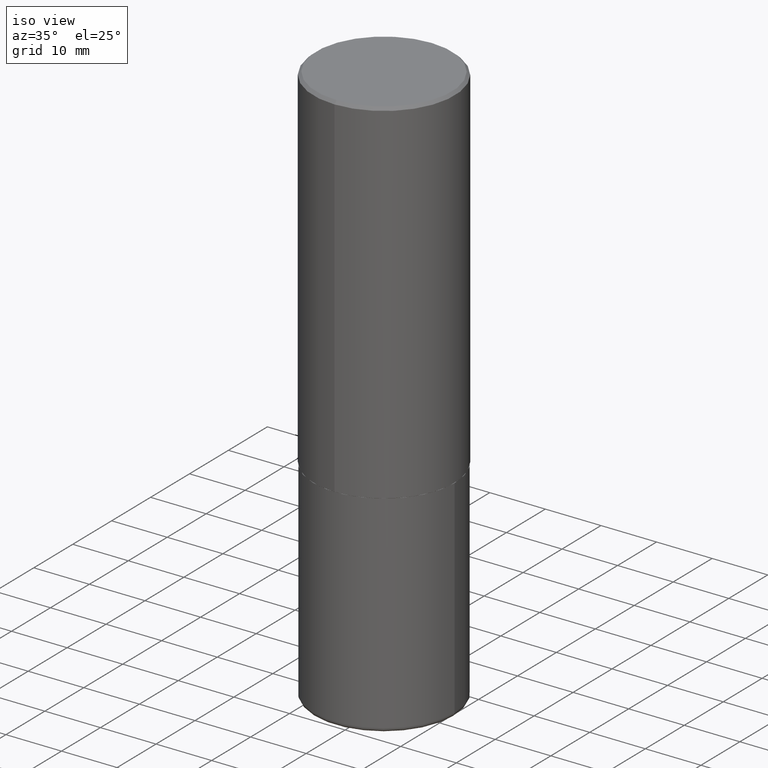
[diagram: clean part render]
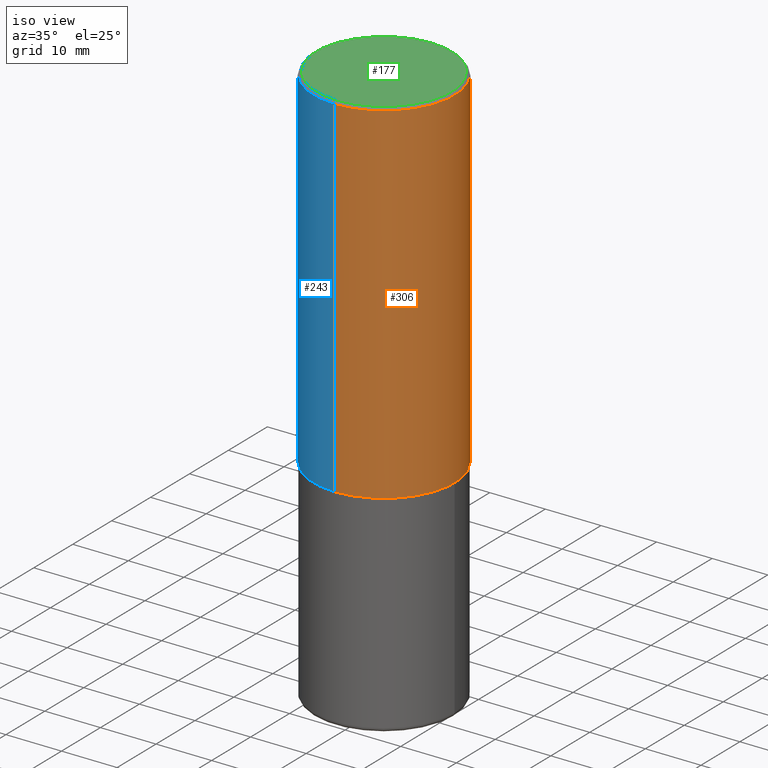
[diagram: same view with three faces highlighted in distinct colors, each labeled with its STEP entity id]
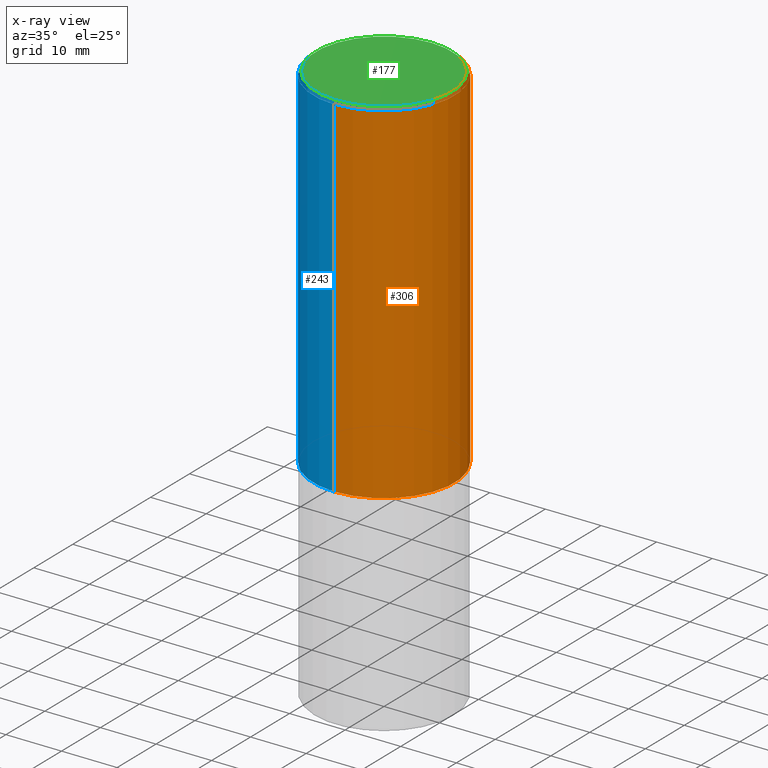
[diagram: x-ray of the same camera — body ghosted, the three highlighted faces saturated]
A machine part, iso view with three faces highlighted in distinct colors.
The next image is the same camera in x-ray (body ghosted, the three faces saturated) — at least one of them is partly hidden behind the body in this view.
Their STEP definitions:

[orange] entity #306 — the highlighted cylindrical surface (partial cylindrical patch) has radius 12.7 mm, axis along (-0, 0, 1).
#11 = DIRECTION ( 'NONE',  ( -2.444465131706345255E-29, 3.492918657822378473E-15, 1.000000000000000000 ) ) ;
#14 = LINE ( 'NONE', #111, #262 ) ;
#15 = EDGE_CURVE ( 'NONE', #197, #304, #14, .T. ) ;
#17 = CARTESIAN_POINT ( 'NONE',  ( 3.491481338843133355E-15, 0.4999999999999999445, -0.02000000000000185310 ) ) ;
#38 = ORIENTED_EDGE ( 'NONE', *, *, #412, .F. ) ;
#61 = VECTOR ( 'NONE', #218, 39.37007874015748143 ) ;
#63 = ORIENTED_EDGE ( 'NONE', *, *, #15, .T. ) ;
#76 = AXIS2_PLACEMENT_3D ( 'NONE', #79, #207, #393 ) ;
#79 = CARTESIAN_POINT ( 'NONE',  ( 4.888930263412717169E-31, -6.985837315644793974E-17, -0.02000000000000010797 ) ) ;
#81 = FACE_OUTER_BOUND ( 'NONE', #383, .T. ) ;
#89 = CARTESIAN_POINT ( 'NONE',  ( -3.491481338843133750E-15, -0.5000000000000001110, 1.746459328911189631E-15 ) ) ;
#111 = CARTESIAN_POINT ( 'NONE',  ( 3.552713678800501718E-15, 0.5000000000000001110, -1.746459328911189631E-15 ) ) ;
#122 = DIRECTION ( 'NONE',  ( -2.444465131706345255E-29, 3.492918657822378473E-15, 1.000000000000000000 ) ) ;
#130 = VERTEX_POINT ( 'NONE', #176 ) ;
#132 = VERTEX_POINT ( 'NONE', #397 ) ;
#176 = CARTESIAN_POINT ( 'NONE',  ( -3.430248998885764992E-15, -0.5000000000000001110, -0.01999999999999835937 ) ) ;
#183 = EDGE_CURVE ( 'NONE', #132, #197, #276, .T. ) ;
#195 = AXIS2_PLACEMENT_3D ( 'NONE', #303, #11, #326 ) ;
#197 = VERTEX_POINT ( 'NONE', #371 ) ;
#207 = DIRECTION ( 'NONE',  ( -2.444465131706345255E-29, 3.492918657822378473E-15, 1.000000000000000000 ) ) ;
#208 = DIRECTION ( 'NONE',  ( -2.444465131706345255E-29, 3.492918657822378868E-15, 1.000000000000000000 ) ) ;
#218 = DIRECTION ( 'NONE',  ( -2.444465131706345255E-29, 3.492918657822378868E-15, 1.000000000000000000 ) ) ;
#232 = CYLINDRICAL_SURFACE ( 'NONE', #195, 0.5000000000000001110 ) ;
#242 = DIRECTION ( 'NONE',  ( -6.982962677686266711E-15, -1.000000000000000000, 3.278217592397114284E-15 ) ) ;
#249 = LINE ( 'NONE', #89, #61 ) ;
#262 = VECTOR ( 'NONE', #208, 39.37007874015748143 ) ;
#265 = CIRCLE ( 'NONE', #76, 0.5000000000000000000 ) ;
#276 = CIRCLE ( 'NONE', #403, 0.5000000000000002220 ) ;
#303 = CARTESIAN_POINT ( 'NONE',  ( 0.000000000000000000, 0.000000000000000000, 0.000000000000000000 ) ) ;
#304 = VERTEX_POINT ( 'NONE', #17 ) ;
#306 = ADVANCED_FACE ( 'NONE', ( #81 ), #232, .T. ) ;
#313 = EDGE_CURVE ( 'NONE', #130, #304, #265, .T. ) ;
#314 = ORIENTED_EDGE ( 'NONE', *, *, #183, .T. ) ;
#326 = DIRECTION ( 'NONE',  ( -6.982962677686265922E-15, -1.000000000000000000, 3.492918657822378473E-15 ) ) ;
#334 = ORIENTED_EDGE ( 'NONE', *, *, #313, .F. ) ;
#371 = CARTESIAN_POINT ( 'NONE',  ( 3.552713678800533273E-15, 0.4999999999999916178, -2.499000000000001886 ) ) ;
#379 = CARTESIAN_POINT ( 'NONE',  ( 6.108718364134157248E-29, -8.728803725898125516E-15, -2.499000000000000110 ) ) ;
#383 = EDGE_LOOP ( 'NONE', ( #314, #63, #334, #38 ) ) ;
#393 = DIRECTION ( 'NONE',  ( -6.982962677686265922E-15, -1.000000000000000000, 3.491643216902136408E-15 ) ) ;
#397 = CARTESIAN_POINT ( 'NONE',  ( -3.491481338843073796E-15, -0.5000000000000089928, -2.498999999999998778 ) ) ;
#403 = AXIS2_PLACEMENT_3D ( 'NONE', #379, #122, #242 ) ;
#412 = EDGE_CURVE ( 'NONE', #132, #130, #249, .T. ) ;

[blue] entity #243 — the highlighted cylindrical surface (partial cylindrical patch) has radius 12.7 mm, axis along (-0, 0, 1).
#12 = DIRECTION ( 'NONE',  ( -6.982962677686265922E-15, -1.000000000000000000, 3.491643216902136408E-15 ) ) ;
#14 = LINE ( 'NONE', #111, #262 ) ;
#15 = EDGE_CURVE ( 'NONE', #197, #304, #14, .T. ) ;
#17 = CARTESIAN_POINT ( 'NONE',  ( 3.491481338843133355E-15, 0.4999999999999999445, -0.02000000000000185310 ) ) ;
#25 = FACE_OUTER_BOUND ( 'NONE', #415, .T. ) ;
#32 = ORIENTED_EDGE ( 'NONE', *, *, #15, .F. ) ;
#61 = VECTOR ( 'NONE', #218, 39.37007874015748143 ) ;
#69 = DIRECTION ( 'NONE',  ( -6.982962677686265922E-15, -1.000000000000000000, 3.492918657822378473E-15 ) ) ;
#89 = CARTESIAN_POINT ( 'NONE',  ( -3.491481338843133750E-15, -0.5000000000000001110, 1.746459328911189631E-15 ) ) ;
#105 = DIRECTION ( 'NONE',  ( -2.444465131706345255E-29, 3.492918657822378473E-15, 1.000000000000000000 ) ) ;
#111 = CARTESIAN_POINT ( 'NONE',  ( 3.552713678800501718E-15, 0.5000000000000001110, -1.746459328911189631E-15 ) ) ;
#112 = CARTESIAN_POINT ( 'NONE',  ( 6.108718364134157248E-29, -8.728803725898125516E-15, -2.499000000000000110 ) ) ;
#120 = EDGE_CURVE ( 'NONE', #304, #130, #305, .T. ) ;
#128 = ORIENTED_EDGE ( 'NONE', *, *, #148, .T. ) ;
#129 = DIRECTION ( 'NONE',  ( -2.444465131706345255E-29, 3.492918657822378473E-15, 1.000000000000000000 ) ) ;
#130 = VERTEX_POINT ( 'NONE', #176 ) ;
#132 = VERTEX_POINT ( 'NONE', #397 ) ;
#148 = EDGE_CURVE ( 'NONE', #197, #132, #157, .T. ) ;
#149 = CYLINDRICAL_SURFACE ( 'NONE', #339, 0.5000000000000001110 ) ;
#157 = CIRCLE ( 'NONE', #228, 0.5000000000000002220 ) ;
#176 = CARTESIAN_POINT ( 'NONE',  ( -3.430248998885764992E-15, -0.5000000000000001110, -0.01999999999999835937 ) ) ;
#197 = VERTEX_POINT ( 'NONE', #371 ) ;
#208 = DIRECTION ( 'NONE',  ( -2.444465131706345255E-29, 3.492918657822378868E-15, 1.000000000000000000 ) ) ;
#218 = DIRECTION ( 'NONE',  ( -2.444465131706345255E-29, 3.492918657822378868E-15, 1.000000000000000000 ) ) ;
#220 = CARTESIAN_POINT ( 'NONE',  ( 0.000000000000000000, 0.000000000000000000, 0.000000000000000000 ) ) ;
#223 = ORIENTED_EDGE ( 'NONE', *, *, #412, .T. ) ;
#228 = AXIS2_PLACEMENT_3D ( 'NONE', #112, #105, #241 ) ;
#241 = DIRECTION ( 'NONE',  ( -6.982962677686266711E-15, -1.000000000000000000, 3.278217592397114284E-15 ) ) ;
#243 = ADVANCED_FACE ( 'NONE', ( #25 ), #149, .T. ) ;
#249 = LINE ( 'NONE', #89, #61 ) ;
#262 = VECTOR ( 'NONE', #208, 39.37007874015748143 ) ;
#266 = DIRECTION ( 'NONE',  ( -2.444465131706345255E-29, 3.492918657822378473E-15, 1.000000000000000000 ) ) ;
#304 = VERTEX_POINT ( 'NONE', #17 ) ;
#305 = CIRCLE ( 'NONE', #413, 0.5000000000000000000 ) ;
#308 = CARTESIAN_POINT ( 'NONE',  ( 4.888930263412717169E-31, -6.985837315644793974E-17, -0.02000000000000010797 ) ) ;
#339 = AXIS2_PLACEMENT_3D ( 'NONE', #220, #129, #69 ) ;
#371 = CARTESIAN_POINT ( 'NONE',  ( 3.552713678800533273E-15, 0.4999999999999916178, -2.499000000000001886 ) ) ;
#381 = ORIENTED_EDGE ( 'NONE', *, *, #120, .F. ) ;
#397 = CARTESIAN_POINT ( 'NONE',  ( -3.491481338843073796E-15, -0.5000000000000089928, -2.498999999999998778 ) ) ;
#412 = EDGE_CURVE ( 'NONE', #132, #130, #249, .T. ) ;
#413 = AXIS2_PLACEMENT_3D ( 'NONE', #308, #266, #12 ) ;
#415 = EDGE_LOOP ( 'NONE', ( #32, #128, #223, #381 ) ) ;

[green] entity #177 — the highlighted planar face has unit normal (0, -0, -1).
#22 = DIRECTION ( 'NONE',  ( -6.982962677686265922E-15, -1.000000000000000000, 3.492918657822378473E-15 ) ) ;
#33 = EDGE_CURVE ( 'NONE', #163, #285, #294, .T. ) ;
#34 = AXIS2_PLACEMENT_3D ( 'NONE', #301, #298, #333 ) ;
#53 = CARTESIAN_POINT ( 'NONE',  ( 3.421651712066270057E-15, 0.4799999999999998157, -1.552124180431797316E-15 ) ) ;
#86 = DIRECTION ( 'NONE',  ( 2.444465131706344694E-29, -3.492918657822378868E-15, -1.000000000000000000 ) ) ;
#100 = ORIENTED_EDGE ( 'NONE', *, *, #140, .T. ) ;
#114 = FACE_OUTER_BOUND ( 'NONE', #350, .T. ) ;
#117 = CARTESIAN_POINT ( 'NONE',  ( 3.351822085289406364E-15, 0.4799999999999998157, -1.614362568093269153E-15 ) ) ;
#140 = EDGE_CURVE ( 'NONE', #285, #163, #178, .T. ) ;
#147 = DIRECTION ( 'NONE',  ( 6.982962677686265922E-15, 1.000000000000000000, -3.492918657822378868E-15 ) ) ;
#163 = VERTEX_POINT ( 'NONE', #53 ) ;
#170 = CARTESIAN_POINT ( 'NONE',  ( -3.361644018908049661E-15, -0.4799999999999998157, 1.801077731077684661E-15 ) ) ;
#177 = ADVANCED_FACE ( 'NONE', ( #114 ), #400, .F. ) ;
#178 = CIRCLE ( 'NONE', #284, 0.4799999999999998157 ) ;
#180 = CARTESIAN_POINT ( 'NONE',  ( -3.042791369841808055E-45, 4.347872509910743958E-31, 1.244767753229437217E-16 ) ) ;
#233 = DIRECTION ( 'NONE',  ( -2.444465131706345255E-29, 3.492918657822378473E-15, 1.000000000000000000 ) ) ;
#254 = AXIS2_PLACEMENT_3D ( 'NONE', #117, #86, #147 ) ;
#284 = AXIS2_PLACEMENT_3D ( 'NONE', #180, #233, #22 ) ;
#285 = VERTEX_POINT ( 'NONE', #170 ) ;
#294 = CIRCLE ( 'NONE', #34, 0.4799999999999998157 ) ;
#298 = DIRECTION ( 'NONE',  ( -2.444465131706345255E-29, 3.492918657822378473E-15, 1.000000000000000000 ) ) ;
#301 = CARTESIAN_POINT ( 'NONE',  ( -3.042791369841808055E-45, 4.347872509910743958E-31, 1.244767753229437217E-16 ) ) ;
#333 = DIRECTION ( 'NONE',  ( -6.982962677686265922E-15, -1.000000000000000000, 3.492918657822378473E-15 ) ) ;
#350 = EDGE_LOOP ( 'NONE', ( #364, #100 ) ) ;
#364 = ORIENTED_EDGE ( 'NONE', *, *, #33, .T. ) ;
#400 = PLANE ( 'NONE',  #254 ) ;